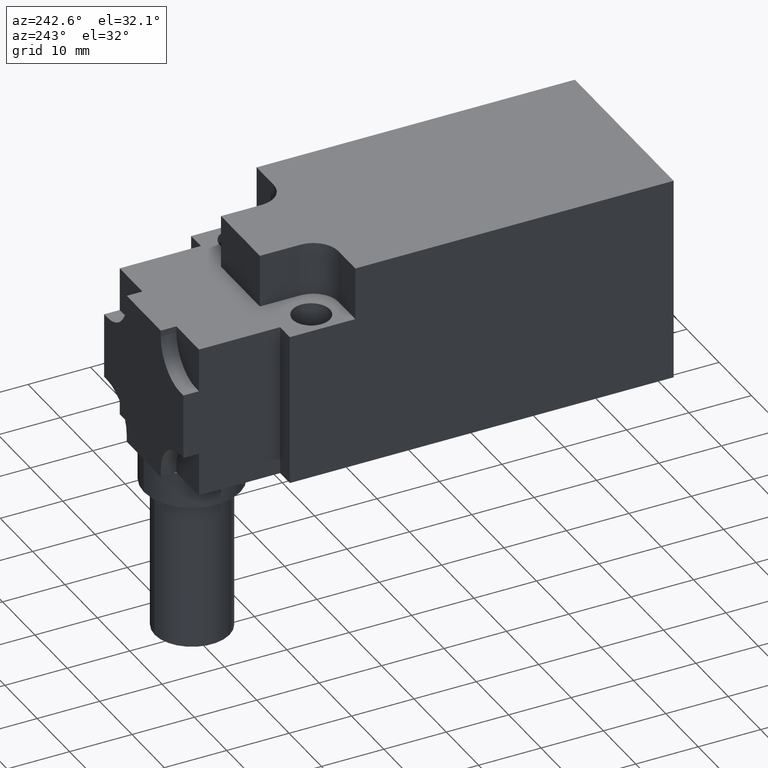
[diagram: clean part render]
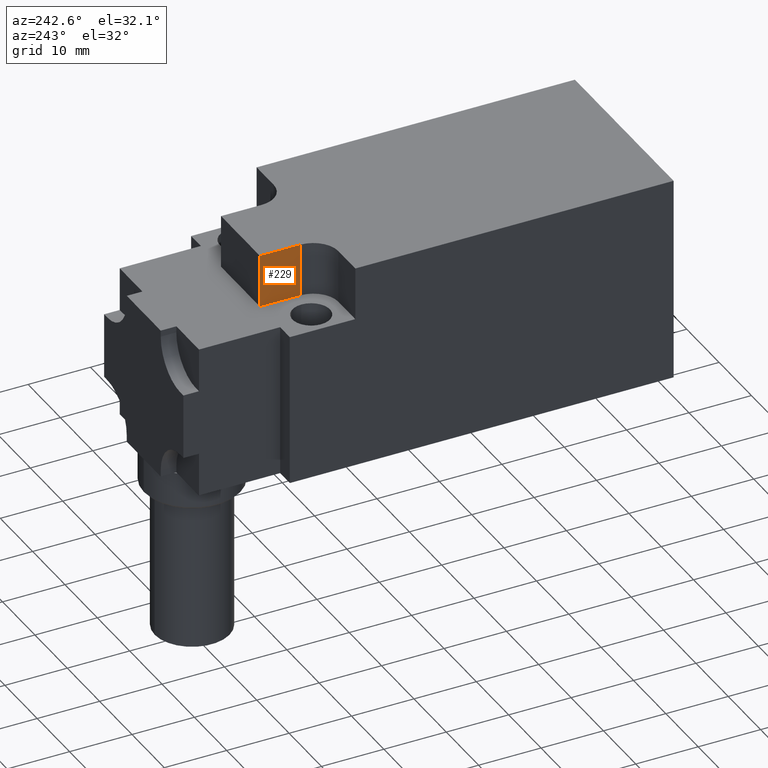
[diagram: same view with one face highlighted and labeled with its STEP entity id]
A machine part, auxiliary view. The second image highlights one B-rep face of the part: STEP entity #229.
In plain terms, the highlighted planar face has unit normal (-1, 0, 0).
Its self-contained STEP definition (entity closure, byte-faithful):
#173=CARTESIAN_POINT('',(-5.999999999976282,-7.749999999969077,24.499999999902048));
#174=VERTEX_POINT('',#173);
#181=CARTESIAN_POINT('',(-5.999999999976282,-7.749999999969077,33.000000114096991));
#182=VERTEX_POINT('',#181);
#183=CARTESIAN_POINT('',(-5.999999999976282,-7.749999999969077,24.499999999902048));
#184=DIRECTION('',(0.0,0.0,1.0));
#185=VECTOR('',#184,8.500000114194943);
#186=LINE('',#183,#185);
#187=EDGE_CURVE('',#174,#182,#186,.T.);
#199=CARTESIAN_POINT('',(-5.999999999976282,-7.749999999969077,24.499999999902048));
#200=DIRECTION('',(-1.0,0.0,0.0));
#201=DIRECTION('',(0.0,-1.0,0.0));
#202=AXIS2_PLACEMENT_3D('',#199,#200,#201);
#203=PLANE('',#202);
#204=CARTESIAN_POINT('',(-5.999999999976282,-14.249999999943057,24.499999999902048));
#205=VERTEX_POINT('',#204);
#206=CARTESIAN_POINT('',(-5.999999999976282,-7.749999999969077,24.499999999902048));
#207=DIRECTION('',(0.0,-1.0,0.0));
#208=VECTOR('',#207,6.499999999973980);
#209=LINE('',#206,#208);
#210=EDGE_CURVE('',#174,#205,#209,.T.);
#211=ORIENTED_EDGE('',*,*,#210,.T.);
#212=CARTESIAN_POINT('',(-5.999999999976282,-14.249999999943057,33.000000114096991));
#213=VERTEX_POINT('',#212);
#214=CARTESIAN_POINT('',(-5.999999999976282,-14.249999999943057,24.499999999902048));
#215=DIRECTION('',(0.0,0.0,1.0));
#216=VECTOR('',#215,8.500000114194943);
#217=LINE('',#214,#216);
#218=EDGE_CURVE('',#205,#213,#217,.T.);
#219=ORIENTED_EDGE('',*,*,#218,.T.);
#220=CARTESIAN_POINT('',(-5.999999999976282,-7.749999999969077,33.000000114096991));
#221=DIRECTION('',(0.0,-1.0,0.0));
#222=VECTOR('',#221,6.499999999973980);
#223=LINE('',#220,#222);
#224=EDGE_CURVE('',#182,#213,#223,.T.);
#225=ORIENTED_EDGE('',*,*,#224,.F.);
#226=ORIENTED_EDGE('',*,*,#187,.F.);
#227=EDGE_LOOP('',(#211,#219,#225,#226));
#228=FACE_OUTER_BOUND('',#227,.T.);
#229=ADVANCED_FACE('',(#228),#203,.T.);